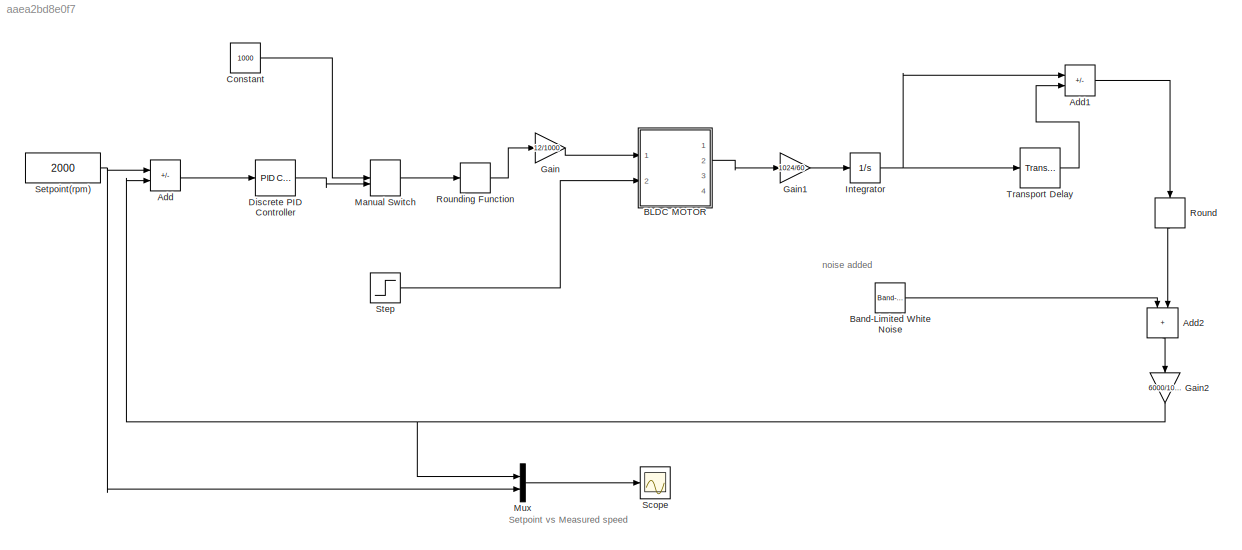
MODEL slx_aaea2bd8e0f7
KIND model
CONFIG AbsTol = auto
CONFIG EnableMultiTasking = off
CONFIG FixedStep = auto
CONFIG MaxStep = auto
CONFIG MinStep = auto
CONFIG RelTol = 1e-3
CONFIG SampleTimeConstraint = Unconstrained
CONFIG SolverName = VariableStepAuto
CONFIG StartTime = 0.0
CONFIG StopTime = 10.0
BLOCK [Sum] Add
  IconShape = rectangular
  Inputs = +-
  Ports = [2, 1]
BLOCK [Sum] Add1
  IconShape = rectangular
  Inputs = +-
  Ports = [2, 1]
BLOCK [Sum] Add2
  IconShape = rectangular
  NameLocation = left
  Ports = [2, 1]
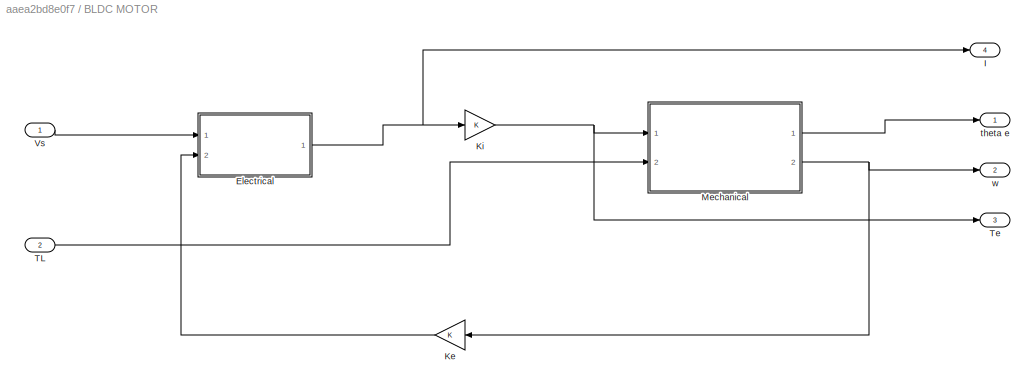
BLOCK [SubSystem] BLDC MOTOR
  Ports = [2, 4]
  RequestExecContextInheritance = off
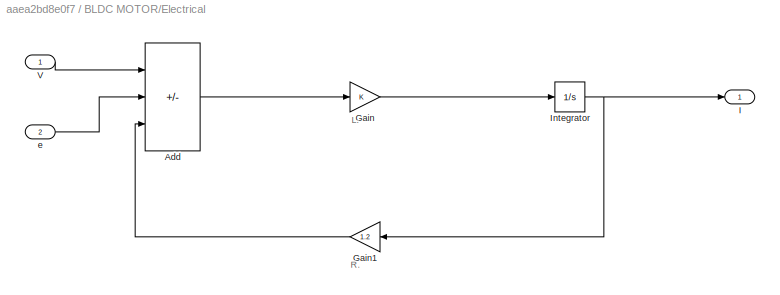
BLOCK [SubSystem] BLDC MOTOR/Electrical
  Ports = [2, 1]
  RequestExecContextInheritance = off
BLOCK [Sum] BLDC MOTOR/Electrical/Add
  IconShape = rectangular
  Inputs = +--
  Ports = [3, 1]
BLOCK [Gain] BLDC MOTOR/Electrical/Gain
BLOCK [Gain] BLDC MOTOR/Electrical/Gain1
  Gain = 1.2
  NameLocation = top
BLOCK [Outport] BLDC MOTOR/Electrical/I
BLOCK [Integrator] BLDC MOTOR/Electrical/Integrator
  Ports = [1, 1]
BLOCK [Inport] BLDC MOTOR/Electrical/V
BLOCK [Inport] BLDC MOTOR/Electrical/e
  Port = 2
BLOCK [Outport] BLDC MOTOR/I
  Port = 4
BLOCK [Gain] BLDC MOTOR/Ke
  NameLocation = top
BLOCK [Gain] BLDC MOTOR/Ki
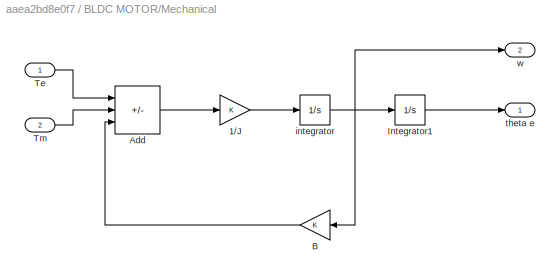
BLOCK [SubSystem] BLDC MOTOR/Mechanical
  Ports = [2, 2]
  RequestExecContextInheritance = off
BLOCK [Gain] BLDC MOTOR/Mechanical/1//J
BLOCK [Sum] BLDC MOTOR/Mechanical/Add
  IconShape = rectangular
  Inputs = +--
  Ports = [3, 1]
BLOCK [Gain] BLDC MOTOR/Mechanical/B
  NameLocation = top
BLOCK [Integrator] BLDC MOTOR/Mechanical/Integrator1
  Ports = [1, 1]
BLOCK [Inport] BLDC MOTOR/Mechanical/Te
BLOCK [Inport] BLDC MOTOR/Mechanical/Tm
  Port = 2
BLOCK [Integrator] BLDC MOTOR/Mechanical/integrator
  Ports = [1, 1]
BLOCK [Outport] BLDC MOTOR/Mechanical/theta e
BLOCK [Outport] BLDC MOTOR/Mechanical/w
  Port = 2
BLOCK [Inport] BLDC MOTOR/TL
  Port = 2
BLOCK [Outport] BLDC MOTOR/Te
  Port = 3
BLOCK [Inport] BLDC MOTOR/Vs
BLOCK [Outport] BLDC MOTOR/theta e
BLOCK [Outport] BLDC MOTOR/w
  Port = 2
BLOCK [Reference] Band-Limited White Noise  REF=simulink/Sources/Band-Limited
White Noise
  Ports = [0, 1]
  SourceBlock = simulink/Sources/Band-Limited\nWhite Noise
  SourceProductBaseCode = SL
  SourceType = Band-Limited White Noise.
BLOCK [Constant] Constant
  Value = 1000
BLOCK [Reference] Discrete PID Controller  REF=pid_lib/PID Controller
  Ports = [1, 1]
  SourceBlock = pid_lib/PID Controller
  SourceProductBaseCode = SL
  SourceType = PID 1dof
BLOCK [Gain] Gain
  Gain = 12/1000
BLOCK [Gain] Gain1
  Gain = 1024/60
BLOCK [Gain] Gain2
  Gain = 6000/1024
  NameLocation = left
BLOCK [Integrator] Integrator
  Ports = [1, 1]
BLOCK [ManualSwitch] Manual Switch
  CurrentSetting = 0
BLOCK [Mux] Mux
  DisplayOption = bar
  Inputs = 2
  Ports = [2, 1]
BLOCK [Rounding] Round
  NameLocation = left
  Operator = round
BLOCK [Rounding] Rounding Function
  Operator = round
BLOCK [Scope] Scope
  Floating = off
  NumInputPorts = 1
  Ports = [1]
  ScopeSpecificationString = Simulink.scopes.TimeScopeBlockCfg('CurrentConfiguration', extmgr.ConfigurationSet(extmgr.Configuration('Core','General UI',true),extmgr.Configuration('Core','Source UI',true),extmgr.Configuration('Sources','WiredSimulink',true,'DataLoggingLimitDataPoints',true,'DataLoggingDecimateData',true),extmgr.Configuration('Visuals','Time Domain',true,'SerializedDisplays',{struct('MinYLimReal','0.00000','Max...<+1514ch>
BLOCK [Constant] Setpoint(rpm)
  Value = 2000
BLOCK [Step] Step
  SampleTime = 0
BLOCK [TransportDelay] Transport Delay
  Ports = [1, 1]
ANNOTATION (root): Setpoint vs Measured speed
ANNOTATION (root): noise added
ANNOTATION BLDC MOTOR/Electrical: L.
ANNOTATION BLDC MOTOR/Electrical: R.
LINE Add1:1 -> Round:1
LINE Add2:1 -> Gain2:1
LINE Add:1 -> Discrete PID Controller:1
LINE BLDC MOTOR/Electrical/Add:1 -> BLDC MOTOR/Electrical/Gain:1
LINE BLDC MOTOR/Electrical/Gain1:1 -> BLDC MOTOR/Electrical/Add:3
LINE BLDC MOTOR/Electrical/Gain:1 -> BLDC MOTOR/Electrical/Integrator:1
NET BLDC MOTOR/Electrical/Integrator:1 -> BLDC MOTOR/Electrical/Gain1:1, BLDC MOTOR/Electrical/I:1
LINE BLDC MOTOR/Electrical/V:1 -> BLDC MOTOR/Electrical/Add:1
LINE BLDC MOTOR/Electrical/e:1 -> BLDC MOTOR/Electrical/Add:2
NET BLDC MOTOR/Electrical:1 -> BLDC MOTOR/I:1, BLDC MOTOR/Ki:1
LINE BLDC MOTOR/Ke:1 -> BLDC MOTOR/Electrical:2
NET BLDC MOTOR/Ki:1 -> BLDC MOTOR/Mechanical:1, BLDC MOTOR/Te:1
LINE BLDC MOTOR/Mechanical/1//J:1 -> BLDC MOTOR/Mechanical/integrator:1
LINE BLDC MOTOR/Mechanical/Add:1 -> BLDC MOTOR/Mechanical/1//J:1
LINE BLDC MOTOR/Mechanical/B:1 -> BLDC MOTOR/Mechanical/Add:3
LINE BLDC MOTOR/Mechanical/Integrator1:1 -> BLDC MOTOR/Mechanical/theta e:1
LINE BLDC MOTOR/Mechanical/Te:1 -> BLDC MOTOR/Mechanical/Add:1
LINE BLDC MOTOR/Mechanical/Tm:1 -> BLDC MOTOR/Mechanical/Add:2
NET BLDC MOTOR/Mechanical/integrator:1 -> BLDC MOTOR/Mechanical/B:1, BLDC MOTOR/Mechanical/Integrator1:1, BLDC MOTOR/Mechanical/w:1
LINE BLDC MOTOR/Mechanical:1 -> BLDC MOTOR/theta e:1
NET BLDC MOTOR/Mechanical:2 -> BLDC MOTOR/Ke:1, BLDC MOTOR/w:1
LINE BLDC MOTOR/TL:1 -> BLDC MOTOR/Mechanical:2
LINE BLDC MOTOR/Vs:1 -> BLDC MOTOR/Electrical:1
LINE BLDC MOTOR:2 -> Gain1:1
LINE Band-Limited White Noise:1 -> Add2:1
LINE Constant:1 -> Manual Switch:1
LINE Discrete PID Controller:1 -> Manual Switch:2
LINE Gain1:1 -> Integrator:1
NET Gain2:1 -> Add:2, Mux:1
LINE Gain:1 -> BLDC MOTOR:1
NET Integrator:1 -> Add1:1, Transport Delay:1
LINE Manual Switch:1 -> Rounding Function:1
LINE Mux:1 -> Scope:1
LINE Round:1 -> Add2:2
LINE Rounding Function:1 -> Gain:1
NET Setpoint(rpm):1 -> Add:1, Mux:2
LINE Step:1 -> BLDC MOTOR:2
LINE Transport Delay:1 -> Add1:2
note: NET lines group one-source signal fan-out (src -> all destinations, sorted); 1:1 wires keep LINE
